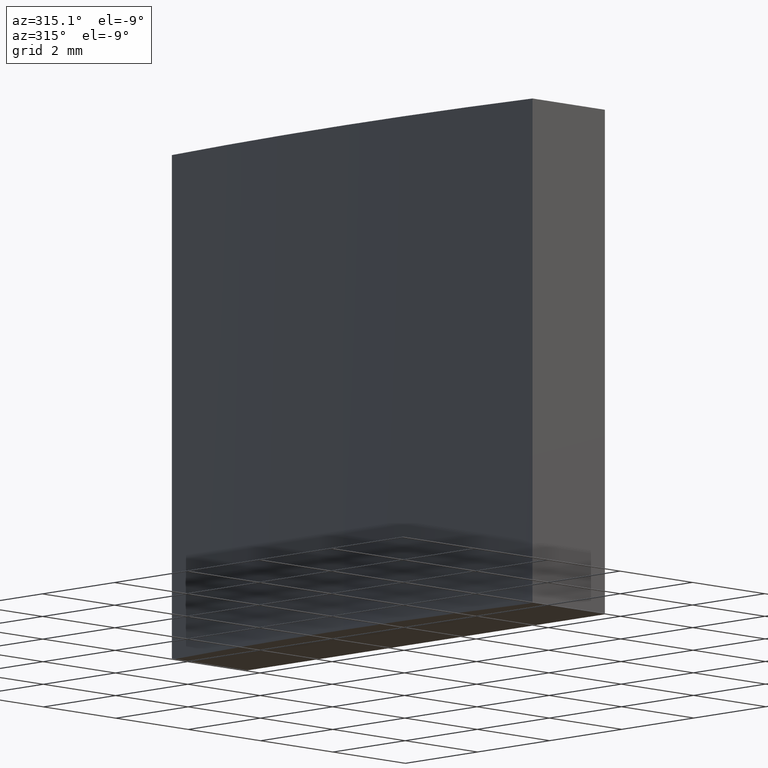
[diagram: clean part render]
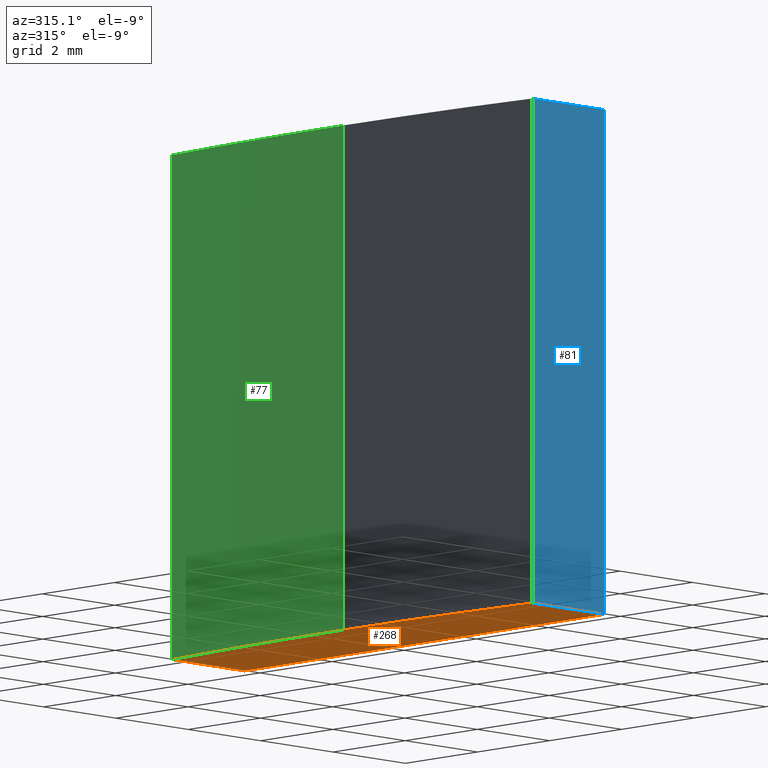
[diagram: same view with three faces highlighted in distinct colors, each labeled with its STEP entity id]
A machine part, auxiliary view with three faces highlighted in distinct colors.
Their STEP definitions:

[orange] entity #268 — the highlighted planar face has unit normal (0, 0, 1).
#6 = LINE ( 'NONE', #200, #148 ) ;
#8 = AXIS2_PLACEMENT_3D ( 'NONE', #173, #63, #89 ) ;
#42 = DIRECTION ( 'NONE',  ( 0.000000000000000000, 0.000000000000000000, 1.000000000000000000 ) ) ;
#43 = VECTOR ( 'NONE', #52, 1000.000000000000000 ) ;
#44 = CARTESIAN_POINT ( 'NONE',  ( -51.43755826242143314, 5.000000000000000888, 0.000000000000000000 ) ) ;
#49 = EDGE_CURVE ( 'NONE', #76, #207, #213, .T. ) ;
#50 = DIRECTION ( 'NONE',  ( 1.000000000000000000, 0.000000000000000000, 0.000000000000000000 ) ) ;
#52 = DIRECTION ( 'NONE',  ( -0.000000000000000000, 1.000000000000000000, -0.000000000000000000 ) ) ;
#63 = DIRECTION ( 'NONE',  ( 0.000000000000000000, 0.000000000000000000, 1.000000000000000000 ) ) ;
#64 = CARTESIAN_POINT ( 'NONE',  ( -49.43755826242143314, -5.000000000000000888, 0.000000000000000000 ) ) ;
#74 = ORIENTED_EDGE ( 'NONE', *, *, #139, .F. ) ;
#76 = VERTEX_POINT ( 'NONE', #108 ) ;
#83 = DIRECTION ( 'NONE',  ( -1.000000000000000000, -0.000000000000000000, -0.000000000000000000 ) ) ;
#87 = CARTESIAN_POINT ( 'NONE',  ( -51.43755826242143314, -5.000000000000000888, 0.000000000000000000 ) ) ;
#89 = DIRECTION ( 'NONE',  ( 1.000000000000000000, 0.000000000000000000, 0.000000000000000000 ) ) ;
#94 = VERTEX_POINT ( 'NONE', #64 ) ;
#98 = EDGE_LOOP ( 'NONE', ( #120, #224, #143, #74, #209 ) ) ;
#100 = EDGE_CURVE ( 'NONE', #94, #246, #112, .T. ) ;
#108 = CARTESIAN_POINT ( 'NONE',  ( -51.67999999999999972, 0.000000000000000000, 0.000000000000000000 ) ) ;
#112 = LINE ( 'NONE', #234, #43 ) ;
#120 = ORIENTED_EDGE ( 'NONE', *, *, #193, .F. ) ;
#128 = CARTESIAN_POINT ( 'NONE',  ( -49.43755826242143314, 5.000000000000000888, 0.000000000000000000 ) ) ;
#139 = EDGE_CURVE ( 'NONE', #207, #94, #239, .T. ) ;
#140 = VERTEX_POINT ( 'NONE', #44 ) ;
#143 = ORIENTED_EDGE ( 'NONE', *, *, #100, .F. ) ;
#148 = VECTOR ( 'NONE', #83, 1000.000000000000000 ) ;
#150 = DIRECTION ( 'NONE',  ( 1.000000000000000000, 0.000000000000000000, -0.000000000000000000 ) ) ;
#151 = EDGE_CURVE ( 'NONE', #246, #140, #6, .T. ) ;
#156 = CIRCLE ( 'NONE', #201, 51.67999999999999972 ) ;
#173 = CARTESIAN_POINT ( 'NONE',  ( 0.000000000000000000, 0.000000000000000000, 0.000000000000000000 ) ) ;
#179 = VECTOR ( 'NONE', #50, 1000.000000000000000 ) ;
#188 = DIRECTION ( 'NONE',  ( 1.000000000000000000, 0.000000000000000000, 0.000000000000000000 ) ) ;
#192 = CARTESIAN_POINT ( 'NONE',  ( 0.000000000000000000, 0.000000000000000000, 0.000000000000000000 ) ) ;
#193 = EDGE_CURVE ( 'NONE', #140, #76, #156, .T. ) ;
#194 = DIRECTION ( 'NONE',  ( 0.000000000000000000, 0.000000000000000000, 1.000000000000000000 ) ) ;
#200 = CARTESIAN_POINT ( 'NONE',  ( -51.43755826242143314, 5.000000000000000888, 0.000000000000000000 ) ) ;
#201 = AXIS2_PLACEMENT_3D ( 'NONE', #192, #42, #188 ) ;
#207 = VERTEX_POINT ( 'NONE', #225 ) ;
#209 = ORIENTED_EDGE ( 'NONE', *, *, #49, .F. ) ;
#211 = PLANE ( 'NONE',  #270 ) ;
#213 = CIRCLE ( 'NONE', #8, 51.67999999999999972 ) ;
#224 = ORIENTED_EDGE ( 'NONE', *, *, #151, .F. ) ;
#225 = CARTESIAN_POINT ( 'NONE',  ( -51.43755826242143314, -5.000000000000000888, 0.000000000000000000 ) ) ;
#234 = CARTESIAN_POINT ( 'NONE',  ( -49.43755826242143314, 5.000000000000000888, 0.000000000000000000 ) ) ;
#239 = LINE ( 'NONE', #87, #179 ) ;
#246 = VERTEX_POINT ( 'NONE', #128 ) ;
#248 = FACE_OUTER_BOUND ( 'NONE', #98, .T. ) ;
#251 = CARTESIAN_POINT ( 'NONE',  ( 0.000000000000000000, 0.000000000000000000, 0.000000000000000000 ) ) ;
#268 = ADVANCED_FACE ( 'NONE', ( #248 ), #211, .F. ) ;
#270 = AXIS2_PLACEMENT_3D ( 'NONE', #251, #194, #150 ) ;

[blue] entity #81 — the highlighted planar face has unit normal (0, 1, 0).
#4 = CARTESIAN_POINT ( 'NONE',  ( -51.43755826242143314, -5.000000000000000888, 10.00000000000000000 ) ) ;
#15 = ORIENTED_EDGE ( 'NONE', *, *, #216, .T. ) ;
#16 = ORIENTED_EDGE ( 'NONE', *, *, #139, .T. ) ;
#18 = VERTEX_POINT ( 'NONE', #145 ) ;
#24 = LINE ( 'NONE', #4, #99 ) ;
#39 = ORIENTED_EDGE ( 'NONE', *, *, #65, .F. ) ;
#41 = CARTESIAN_POINT ( 'NONE',  ( -51.43755826242143314, -5.000000000000000888, 10.00000000000000000 ) ) ;
#50 = DIRECTION ( 'NONE',  ( 1.000000000000000000, 0.000000000000000000, 0.000000000000000000 ) ) ;
#61 = VECTOR ( 'NONE', #78, 1000.000000000000000 ) ;
#64 = CARTESIAN_POINT ( 'NONE',  ( -49.43755826242143314, -5.000000000000000888, 0.000000000000000000 ) ) ;
#65 = EDGE_CURVE ( 'NONE', #18, #267, #24, .T. ) ;
#66 = DIRECTION ( 'NONE',  ( 0.000000000000000000, 1.000000000000000000, 0.000000000000000000 ) ) ;
#78 = DIRECTION ( 'NONE',  ( -0.000000000000000000, -0.000000000000000000, -1.000000000000000000 ) ) ;
#81 = ADVANCED_FACE ( 'NONE', ( #218 ), #153, .F. ) ;
#82 = DIRECTION ( 'NONE',  ( 1.000000000000000000, 0.000000000000000000, 0.000000000000000000 ) ) ;
#87 = CARTESIAN_POINT ( 'NONE',  ( -51.43755826242143314, -5.000000000000000888, 0.000000000000000000 ) ) ;
#94 = VERTEX_POINT ( 'NONE', #64 ) ;
#99 = VECTOR ( 'NONE', #82, 1000.000000000000000 ) ;
#139 = EDGE_CURVE ( 'NONE', #207, #94, #239, .T. ) ;
#145 = CARTESIAN_POINT ( 'NONE',  ( -51.43755826242143314, -5.000000000000000888, 10.00000000000000000 ) ) ;
#146 = LINE ( 'NONE', #41, #61 ) ;
#147 = VECTOR ( 'NONE', #269, 1000.000000000000000 ) ;
#149 = LINE ( 'NONE', #171, #147 ) ;
#153 = PLANE ( 'NONE',  #158 ) ;
#158 = AXIS2_PLACEMENT_3D ( 'NONE', #178, #66, #258 ) ;
#165 = ORIENTED_EDGE ( 'NONE', *, *, #252, .F. ) ;
#171 = CARTESIAN_POINT ( 'NONE',  ( -49.43755826242143314, -5.000000000000000888, 10.00000000000000000 ) ) ;
#178 = CARTESIAN_POINT ( 'NONE',  ( -51.43755826242143314, -5.000000000000000888, 10.00000000000000000 ) ) ;
#179 = VECTOR ( 'NONE', #50, 1000.000000000000000 ) ;
#207 = VERTEX_POINT ( 'NONE', #225 ) ;
#216 = EDGE_CURVE ( 'NONE', #18, #207, #146, .T. ) ;
#218 = FACE_OUTER_BOUND ( 'NONE', #264, .T. ) ;
#225 = CARTESIAN_POINT ( 'NONE',  ( -51.43755826242143314, -5.000000000000000888, 0.000000000000000000 ) ) ;
#229 = CARTESIAN_POINT ( 'NONE',  ( -49.43755826242143314, -5.000000000000000888, 10.00000000000000000 ) ) ;
#239 = LINE ( 'NONE', #87, #179 ) ;
#252 = EDGE_CURVE ( 'NONE', #267, #94, #149, .T. ) ;
#258 = DIRECTION ( 'NONE',  ( 0.000000000000000000, -0.000000000000000000, 1.000000000000000000 ) ) ;
#264 = EDGE_LOOP ( 'NONE', ( #16, #165, #39, #15 ) ) ;
#267 = VERTEX_POINT ( 'NONE', #229 ) ;
#269 = DIRECTION ( 'NONE',  ( -0.000000000000000000, -0.000000000000000000, -1.000000000000000000 ) ) ;

[green] entity #77 — the highlighted cylindrical surface (partial cylindrical patch) has radius 51.68 mm, axis along (-0, -0, -1).
#2 = VECTOR ( 'NONE', #259, 1000.000000000000000 ) ;
#3 = AXIS2_PLACEMENT_3D ( 'NONE', #217, #176, #85 ) ;
#7 = CARTESIAN_POINT ( 'NONE',  ( -51.67999999999999972, 0.000000000000000000, 10.00000000000000000 ) ) ;
#11 = DIRECTION ( 'NONE',  ( -0.000000000000000000, -0.000000000000000000, -1.000000000000000000 ) ) ;
#40 = EDGE_CURVE ( 'NONE', #105, #76, #203, .T. ) ;
#42 = DIRECTION ( 'NONE',  ( 0.000000000000000000, 0.000000000000000000, 1.000000000000000000 ) ) ;
#44 = CARTESIAN_POINT ( 'NONE',  ( -51.43755826242143314, 5.000000000000000888, 0.000000000000000000 ) ) ;
#45 = EDGE_CURVE ( 'NONE', #271, #140, #160, .T. ) ;
#46 = FACE_OUTER_BOUND ( 'NONE', #266, .T. ) ;
#54 = EDGE_CURVE ( 'NONE', #271, #105, #129, .T. ) ;
#55 = ORIENTED_EDGE ( 'NONE', *, *, #45, .T. ) ;
#62 = DIRECTION ( 'NONE',  ( -1.000000000000000000, 0.000000000000000000, 0.000000000000000000 ) ) ;
#76 = VERTEX_POINT ( 'NONE', #108 ) ;
#77 = ADVANCED_FACE ( 'NONE', ( #46 ), #154, .T. ) ;
#85 = DIRECTION ( 'NONE',  ( 1.000000000000000000, 0.000000000000000000, 0.000000000000000000 ) ) ;
#105 = VERTEX_POINT ( 'NONE', #255 ) ;
#108 = CARTESIAN_POINT ( 'NONE',  ( -51.67999999999999972, 0.000000000000000000, 0.000000000000000000 ) ) ;
#129 = CIRCLE ( 'NONE', #3, 51.67999999999999972 ) ;
#135 = CARTESIAN_POINT ( 'NONE',  ( -51.43755826242143314, 5.000000000000000888, 10.00000000000000000 ) ) ;
#140 = VERTEX_POINT ( 'NONE', #44 ) ;
#154 = CYLINDRICAL_SURFACE ( 'NONE', #166, 51.67999999999999972 ) ;
#156 = CIRCLE ( 'NONE', #201, 51.67999999999999972 ) ;
#160 = LINE ( 'NONE', #135, #228 ) ;
#166 = AXIS2_PLACEMENT_3D ( 'NONE', #172, #256, #62 ) ;
#172 = CARTESIAN_POINT ( 'NONE',  ( 0.000000000000000000, 0.000000000000000000, 10.00000000000000000 ) ) ;
#176 = DIRECTION ( 'NONE',  ( 0.000000000000000000, 0.000000000000000000, 1.000000000000000000 ) ) ;
#186 = ORIENTED_EDGE ( 'NONE', *, *, #54, .F. ) ;
#188 = DIRECTION ( 'NONE',  ( 1.000000000000000000, 0.000000000000000000, 0.000000000000000000 ) ) ;
#192 = CARTESIAN_POINT ( 'NONE',  ( 0.000000000000000000, 0.000000000000000000, 0.000000000000000000 ) ) ;
#193 = EDGE_CURVE ( 'NONE', #140, #76, #156, .T. ) ;
#201 = AXIS2_PLACEMENT_3D ( 'NONE', #192, #42, #188 ) ;
#203 = LINE ( 'NONE', #7, #2 ) ;
#204 = ORIENTED_EDGE ( 'NONE', *, *, #40, .F. ) ;
#217 = CARTESIAN_POINT ( 'NONE',  ( 0.000000000000000000, 0.000000000000000000, 10.00000000000000000 ) ) ;
#228 = VECTOR ( 'NONE', #11, 1000.000000000000000 ) ;
#245 = ORIENTED_EDGE ( 'NONE', *, *, #193, .T. ) ;
#247 = CARTESIAN_POINT ( 'NONE',  ( -51.43755826242143314, 5.000000000000000888, 10.00000000000000000 ) ) ;
#255 = CARTESIAN_POINT ( 'NONE',  ( -51.67999999999999972, 0.000000000000000000, 10.00000000000000000 ) ) ;
#256 = DIRECTION ( 'NONE',  ( -0.000000000000000000, -0.000000000000000000, -1.000000000000000000 ) ) ;
#259 = DIRECTION ( 'NONE',  ( -0.000000000000000000, -0.000000000000000000, -1.000000000000000000 ) ) ;
#266 = EDGE_LOOP ( 'NONE', ( #204, #186, #55, #245 ) ) ;
#271 = VERTEX_POINT ( 'NONE', #247 ) ;